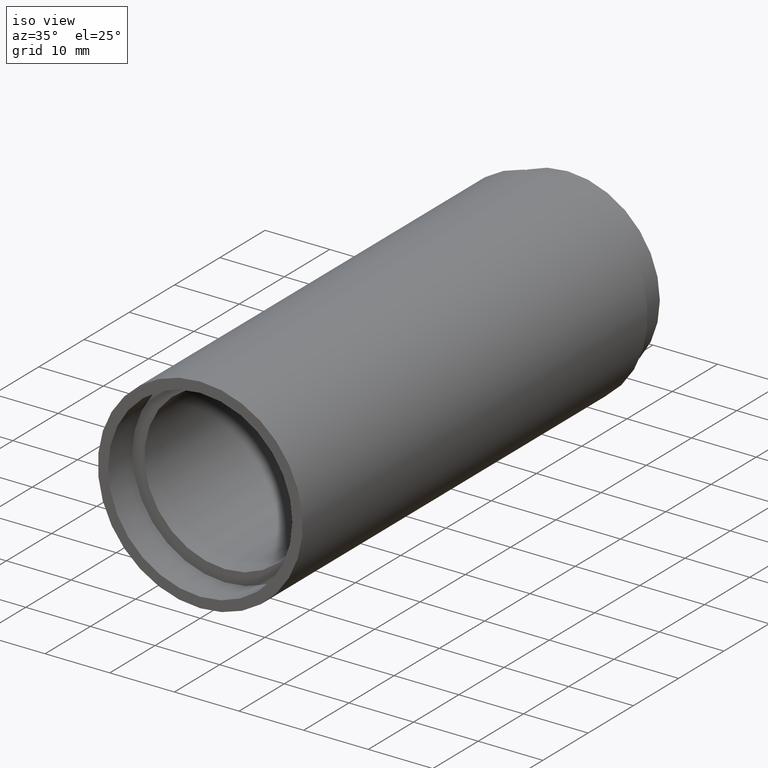
[diagram: clean part render]
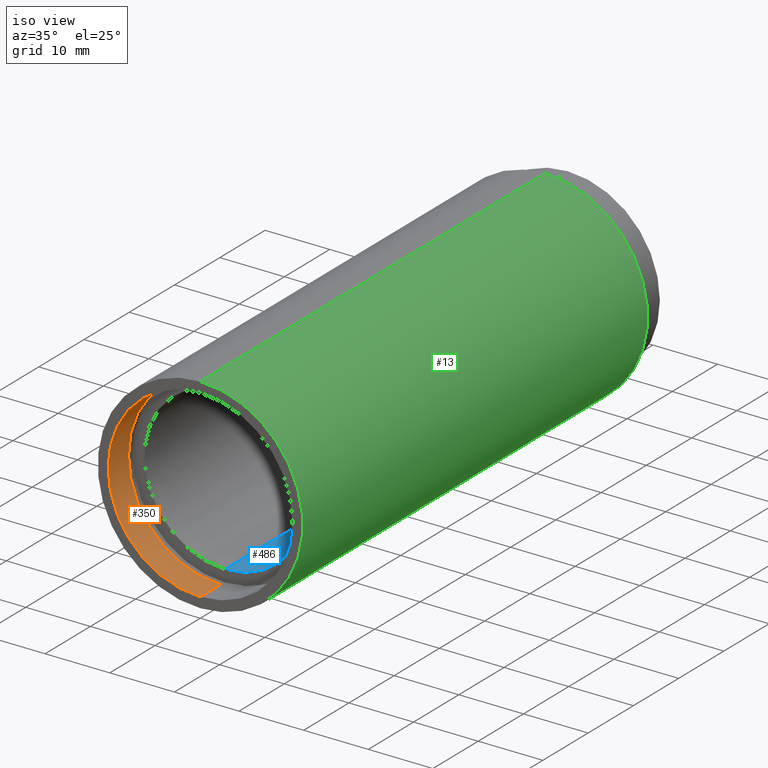
[diagram: same view with three faces highlighted in distinct colors, each labeled with its STEP entity id]
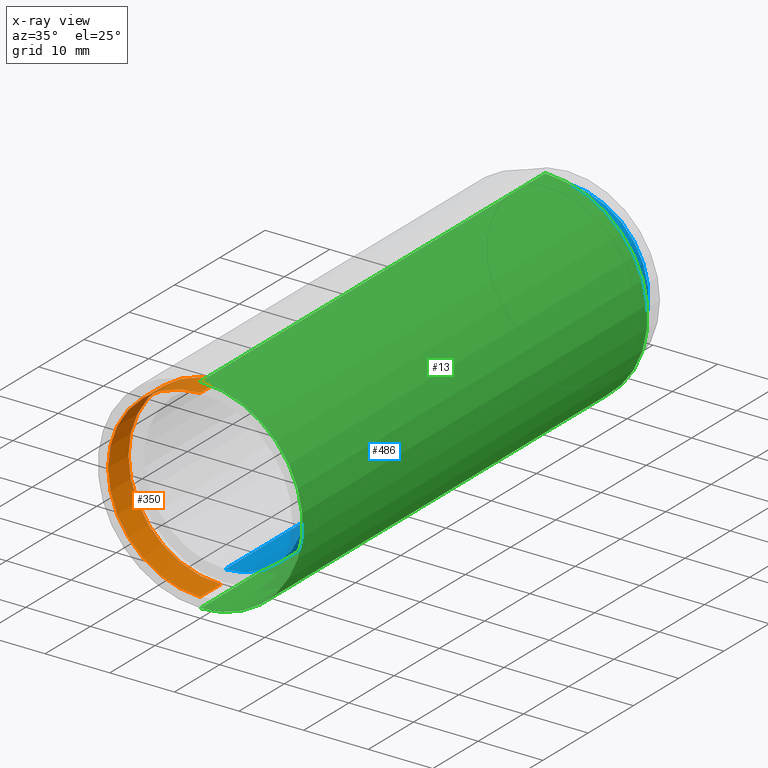
[diagram: x-ray of the same camera — body ghosted, the three highlighted faces saturated]
A machine part, iso view with three faces highlighted in distinct colors.
The next image is the same camera in x-ray (body ghosted, the three faces saturated) — at least one of them is partly hidden behind the body in this view.
Their STEP definitions:

[orange] entity #350 — the highlighted cylindrical surface (partial cylindrical patch) has radius 14.25 mm, axis along (-0, 1, -0).
#20 = LINE ( 'NONE', #544, #371 ) ;
#68 = CARTESIAN_POINT ( 'NONE',  ( 0.0000000000000000000, 2.775557561562891400E-014, 14.25000000000000000 ) ) ;
#69 = CARTESIAN_POINT ( 'NONE',  ( 1.745121688784978200E-015, 4.500000000000032000, -14.25000000000000000 ) ) ;
#83 = DIRECTION ( 'NONE',  ( 0.0000000000000000000, 0.0000000000000000000, 1.000000000000000000 ) ) ;
#151 = EDGE_CURVE ( 'NONE', #456, #548, #193, .T. ) ;
#193 = CIRCLE ( 'NONE', #336, 14.25000000000000000 ) ;
#209 = VERTEX_POINT ( 'NONE', #68 ) ;
#218 = CARTESIAN_POINT ( 'NONE',  ( 0.0000000000000000000, 161.3761669434274500, 0.0000000000000000000 ) ) ;
#270 = ORIENTED_EDGE ( 'NONE', *, *, #310, .T. ) ;
#285 = AXIS2_PLACEMENT_3D ( 'NONE', #218, #508, #355 ) ;
#292 = CYLINDRICAL_SURFACE ( 'NONE', #285, 14.25000000000000000 ) ;
#310 = EDGE_CURVE ( 'NONE', #447, #456, #451, .T. ) ;
#315 = ORIENTED_EDGE ( 'NONE', *, *, #386, .F. ) ;
#327 = VECTOR ( 'NONE', #428, 1000.000000000000000 ) ;
#335 = CARTESIAN_POINT ( 'NONE',  ( 1.745121688784978200E-015, 161.3761669434274500, -14.25000000000000000 ) ) ;
#336 = AXIS2_PLACEMENT_3D ( 'NONE', #464, #419, #511 ) ;
#340 = ORIENTED_EDGE ( 'NONE', *, *, #151, .T. ) ;
#350 = ADVANCED_FACE ( 'NONE', ( #389 ), #292, .F. ) ;
#355 = DIRECTION ( 'NONE',  ( 0.0000000000000000000, 0.0000000000000000000, 1.000000000000000000 ) ) ;
#356 = CIRCLE ( 'NONE', #532, 14.25000000000000000 ) ;
#369 = ORIENTED_EDGE ( 'NONE', *, *, #534, .F. ) ;
#371 = VECTOR ( 'NONE', #596, 1000.000000000000000 ) ;
#386 = EDGE_CURVE ( 'NONE', #209, #548, #20, .T. ) ;
#389 = FACE_OUTER_BOUND ( 'NONE', #528, .T. ) ;
#419 = DIRECTION ( 'NONE',  ( -0.0000000000000000000, 1.000000000000000000, -0.0000000000000000000 ) ) ;
#428 = DIRECTION ( 'NONE',  ( -0.0000000000000000000, 1.000000000000000000, -0.0000000000000000000 ) ) ;
#447 = VERTEX_POINT ( 'NONE', #606 ) ;
#451 = LINE ( 'NONE', #335, #327 ) ;
#456 = VERTEX_POINT ( 'NONE', #69 ) ;
#464 = CARTESIAN_POINT ( 'NONE',  ( 0.0000000000000000000, 4.500000000000032000, 0.0000000000000000000 ) ) ;
#465 = CARTESIAN_POINT ( 'NONE',  ( 0.0000000000000000000, 4.500000000000032000, 14.25000000000000000 ) ) ;
#474 = DIRECTION ( 'NONE',  ( -0.0000000000000000000, 1.000000000000000000, -0.0000000000000000000 ) ) ;
#508 = DIRECTION ( 'NONE',  ( -0.0000000000000000000, 1.000000000000000000, -0.0000000000000000000 ) ) ;
#511 = DIRECTION ( 'NONE',  ( 0.0000000000000000000, 0.0000000000000000000, 1.000000000000000000 ) ) ;
#528 = EDGE_LOOP ( 'NONE', ( #369, #270, #340, #315 ) ) ;
#532 = AXIS2_PLACEMENT_3D ( 'NONE', #611, #474, #83 ) ;
#534 = EDGE_CURVE ( 'NONE', #447, #209, #356, .T. ) ;
#544 = CARTESIAN_POINT ( 'NONE',  ( 0.0000000000000000000, 161.3761669434274500, 14.25000000000000000 ) ) ;
#548 = VERTEX_POINT ( 'NONE', #465 ) ;
#596 = DIRECTION ( 'NONE',  ( -0.0000000000000000000, 1.000000000000000000, -0.0000000000000000000 ) ) ;
#606 = CARTESIAN_POINT ( 'NONE',  ( 1.745121688784978200E-015, 2.775557561562891400E-014, -14.25000000000000000 ) ) ;
#611 = CARTESIAN_POINT ( 'NONE',  ( 0.0000000000000000000, 2.775557561562891400E-014, 0.0000000000000000000 ) ) ;

[blue] entity #486 — the highlighted cylindrical surface (partial cylindrical patch) has radius 12.5 mm, axis along (-0, 1, -0).
#6 = EDGE_LOOP ( 'NONE', ( #89, #158, #195, #243 ) ) ;
#38 = CARTESIAN_POINT ( 'NONE',  ( 0.0000000000000000000, 81.19999999999998900, 12.50000000000002000 ) ) ;
#53 = CYLINDRICAL_SURFACE ( 'NONE', #275, 12.50000000000002000 ) ;
#56 = AXIS2_PLACEMENT_3D ( 'NONE', #180, #417, #227 ) ;
#70 = DIRECTION ( 'NONE',  ( -0.0000000000000000000, 1.000000000000000000, -0.0000000000000000000 ) ) ;
#89 = ORIENTED_EDGE ( 'NONE', *, *, #427, .F. ) ;
#93 = DIRECTION ( 'NONE',  ( -0.0000000000000000000, 1.000000000000000000, -0.0000000000000000000 ) ) ;
#118 = CARTESIAN_POINT ( 'NONE',  ( 1.530808498934193900E-015, 81.19999999999998900, -12.50000000000002000 ) ) ;
#124 = VERTEX_POINT ( 'NONE', #38 ) ;
#144 = EDGE_CURVE ( 'NONE', #124, #392, #495, .T. ) ;
#150 = LINE ( 'NONE', #309, #591 ) ;
#158 = ORIENTED_EDGE ( 'NONE', *, *, #169, .F. ) ;
#165 = CARTESIAN_POINT ( 'NONE',  ( 1.530808498934193900E-015, 5.499999999999976900, -12.50000000000002000 ) ) ;
#168 = LINE ( 'NONE', #304, #600 ) ;
#169 = EDGE_CURVE ( 'NONE', #215, #212, #530, .T. ) ;
#180 = CARTESIAN_POINT ( 'NONE',  ( 0.0000000000000000000, 81.19999999999998900, 0.0000000000000000000 ) ) ;
#195 = ORIENTED_EDGE ( 'NONE', *, *, #398, .T. ) ;
#205 = CARTESIAN_POINT ( 'NONE',  ( 0.0000000000000000000, 5.499999999999976900, 12.50000000000002000 ) ) ;
#212 = VERTEX_POINT ( 'NONE', #165 ) ;
#215 = VERTEX_POINT ( 'NONE', #205 ) ;
#227 = DIRECTION ( 'NONE',  ( 0.0000000000000000000, 0.0000000000000000000, 1.000000000000000000 ) ) ;
#243 = ORIENTED_EDGE ( 'NONE', *, *, #144, .T. ) ;
#275 = AXIS2_PLACEMENT_3D ( 'NONE', #376, #93, #518 ) ;
#304 = CARTESIAN_POINT ( 'NONE',  ( 0.0000000000000000000, 161.3761669434274500, 12.50000000000002000 ) ) ;
#309 = CARTESIAN_POINT ( 'NONE',  ( 1.530808498934193900E-015, 161.3761669434274500, -12.50000000000002000 ) ) ;
#342 = FACE_OUTER_BOUND ( 'NONE', #6, .T. ) ;
#376 = CARTESIAN_POINT ( 'NONE',  ( 0.0000000000000000000, 161.3761669434274500, 0.0000000000000000000 ) ) ;
#392 = VERTEX_POINT ( 'NONE', #118 ) ;
#398 = EDGE_CURVE ( 'NONE', #215, #124, #168, .T. ) ;
#399 = DIRECTION ( 'NONE',  ( 0.0000000000000000000, 0.0000000000000000000, 1.000000000000000000 ) ) ;
#417 = DIRECTION ( 'NONE',  ( -0.0000000000000000000, 1.000000000000000000, -0.0000000000000000000 ) ) ;
#427 = EDGE_CURVE ( 'NONE', #212, #392, #150, .T. ) ;
#436 = AXIS2_PLACEMENT_3D ( 'NONE', #599, #70, #399 ) ;
#486 = ADVANCED_FACE ( 'NONE', ( #342 ), #53, .F. ) ;
#495 = CIRCLE ( 'NONE', #56, 12.50000000000002000 ) ;
#500 = DIRECTION ( 'NONE',  ( -0.0000000000000000000, 1.000000000000000000, -0.0000000000000000000 ) ) ;
#503 = DIRECTION ( 'NONE',  ( -0.0000000000000000000, 1.000000000000000000, -0.0000000000000000000 ) ) ;
#518 = DIRECTION ( 'NONE',  ( 0.0000000000000000000, 0.0000000000000000000, 1.000000000000000000 ) ) ;
#530 = CIRCLE ( 'NONE', #436, 12.50000000000002000 ) ;
#591 = VECTOR ( 'NONE', #503, 1000.000000000000000 ) ;
#599 = CARTESIAN_POINT ( 'NONE',  ( 0.0000000000000000000, 5.499999999999976900, 0.0000000000000000000 ) ) ;
#600 = VECTOR ( 'NONE', #500, 1000.000000000000000 ) ;

[green] entity #13 — the highlighted cylindrical surface (partial cylindrical patch) has radius 15.85 mm, axis along (-0, 1, -0).
#13 = ADVANCED_FACE ( 'NONE', ( #344 ), #294, .T. ) ;
#14 = VECTOR ( 'NONE', #189, 1000.000000000000000 ) ;
#23 = VECTOR ( 'NONE', #49, 1000.000000000000000 ) ;
#43 = DIRECTION ( 'NONE',  ( -0.0000000000000000000, 1.000000000000000000, -0.0000000000000000000 ) ) ;
#49 = DIRECTION ( 'NONE',  ( -0.0000000000000000000, 1.000000000000000000, -0.0000000000000000000 ) ) ;
#54 = AXIS2_PLACEMENT_3D ( 'NONE', #555, #43, #618 ) ;
#60 = AXIS2_PLACEMENT_3D ( 'NONE', #121, #216, #259 ) ;
#88 = CIRCLE ( 'NONE', #54, 15.85000000000002100 ) ;
#94 = EDGE_LOOP ( 'NONE', ( #357, #333, #109, #412 ) ) ;
#109 = ORIENTED_EDGE ( 'NONE', *, *, #379, .F. ) ;
#121 = CARTESIAN_POINT ( 'NONE',  ( 0.0000000000000000000, 76.19999999999998900, 0.0000000000000000000 ) ) ;
#173 = VERTEX_POINT ( 'NONE', #358 ) ;
#189 = DIRECTION ( 'NONE',  ( -0.0000000000000000000, 1.000000000000000000, -0.0000000000000000000 ) ) ;
#216 = DIRECTION ( 'NONE',  ( -0.0000000000000000000, 1.000000000000000000, -0.0000000000000000000 ) ) ;
#239 = CARTESIAN_POINT ( 'NONE',  ( 1.941065176648557100E-015, -2.775557561562891400E-014, -15.85000000000002100 ) ) ;
#259 = DIRECTION ( 'NONE',  ( 0.0000000000000000000, 0.0000000000000000000, 1.000000000000000000 ) ) ;
#268 = EDGE_CURVE ( 'NONE', #173, #305, #579, .T. ) ;
#294 = CYLINDRICAL_SURFACE ( 'NONE', #501, 15.85000000000002100 ) ;
#296 = EDGE_CURVE ( 'NONE', #300, #488, #405, .T. ) ;
#300 = VERTEX_POINT ( 'NONE', #239 ) ;
#305 = VERTEX_POINT ( 'NONE', #445 ) ;
#319 = CARTESIAN_POINT ( 'NONE',  ( 1.941065176648557100E-015, 76.19999999999998900, -15.85000000000002100 ) ) ;
#322 = CARTESIAN_POINT ( 'NONE',  ( 0.0000000000000000000, 161.3761669434274500, 0.0000000000000000000 ) ) ;
#333 = ORIENTED_EDGE ( 'NONE', *, *, #296, .T. ) ;
#344 = FACE_OUTER_BOUND ( 'NONE', #94, .T. ) ;
#357 = ORIENTED_EDGE ( 'NONE', *, *, #469, .T. ) ;
#358 = CARTESIAN_POINT ( 'NONE',  ( 0.0000000000000000000, -2.775557561562891400E-014, 15.85000000000002100 ) ) ;
#379 = EDGE_CURVE ( 'NONE', #305, #488, #384, .T. ) ;
#381 = CARTESIAN_POINT ( 'NONE',  ( 0.0000000000000000000, 161.3761669434274500, 15.85000000000002100 ) ) ;
#384 = CIRCLE ( 'NONE', #60, 15.85000000000002100 ) ;
#405 = LINE ( 'NONE', #426, #23 ) ;
#412 = ORIENTED_EDGE ( 'NONE', *, *, #268, .F. ) ;
#426 = CARTESIAN_POINT ( 'NONE',  ( 1.941065176648557100E-015, 161.3761669434274500, -15.85000000000002100 ) ) ;
#445 = CARTESIAN_POINT ( 'NONE',  ( 0.0000000000000000000, 76.19999999999998900, 15.85000000000002100 ) ) ;
#469 = EDGE_CURVE ( 'NONE', #173, #300, #88, .T. ) ;
#488 = VERTEX_POINT ( 'NONE', #319 ) ;
#501 = AXIS2_PLACEMENT_3D ( 'NONE', #322, #617, #509 ) ;
#509 = DIRECTION ( 'NONE',  ( 0.0000000000000000000, 0.0000000000000000000, 1.000000000000000000 ) ) ;
#555 = CARTESIAN_POINT ( 'NONE',  ( 0.0000000000000000000, -2.775557561562891400E-014, 0.0000000000000000000 ) ) ;
#579 = LINE ( 'NONE', #381, #14 ) ;
#617 = DIRECTION ( 'NONE',  ( -0.0000000000000000000, 1.000000000000000000, -0.0000000000000000000 ) ) ;
#618 = DIRECTION ( 'NONE',  ( 0.0000000000000000000, 0.0000000000000000000, 1.000000000000000000 ) ) ;